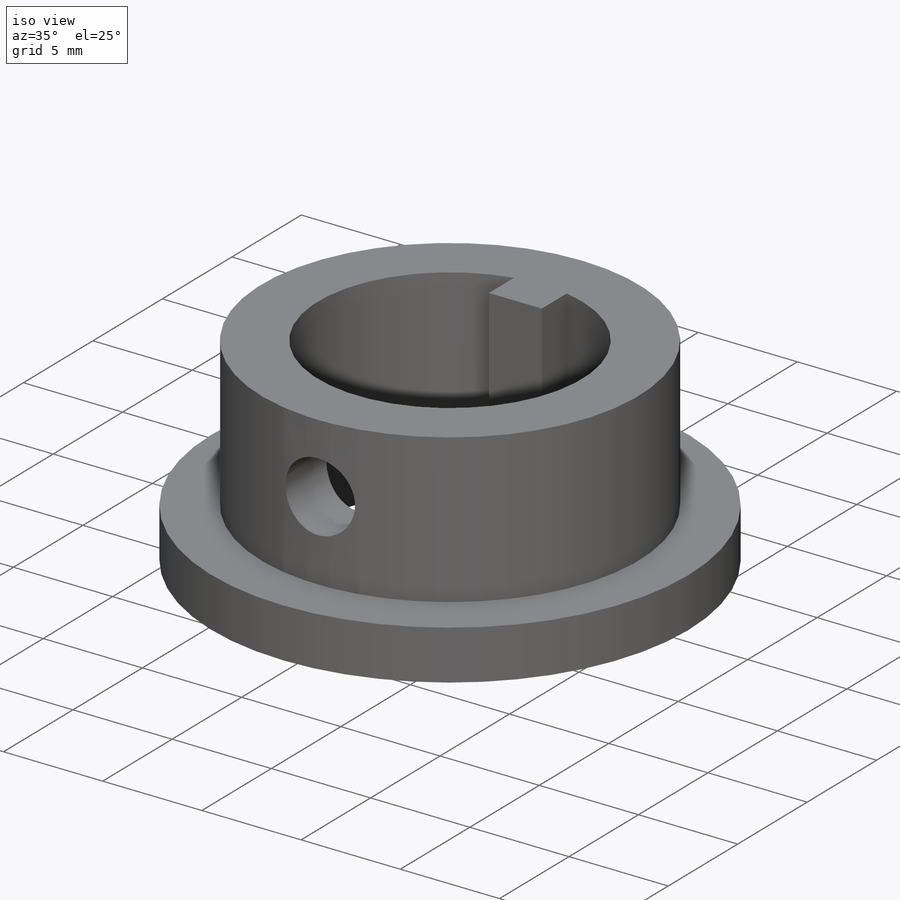
[diagram: iso view]
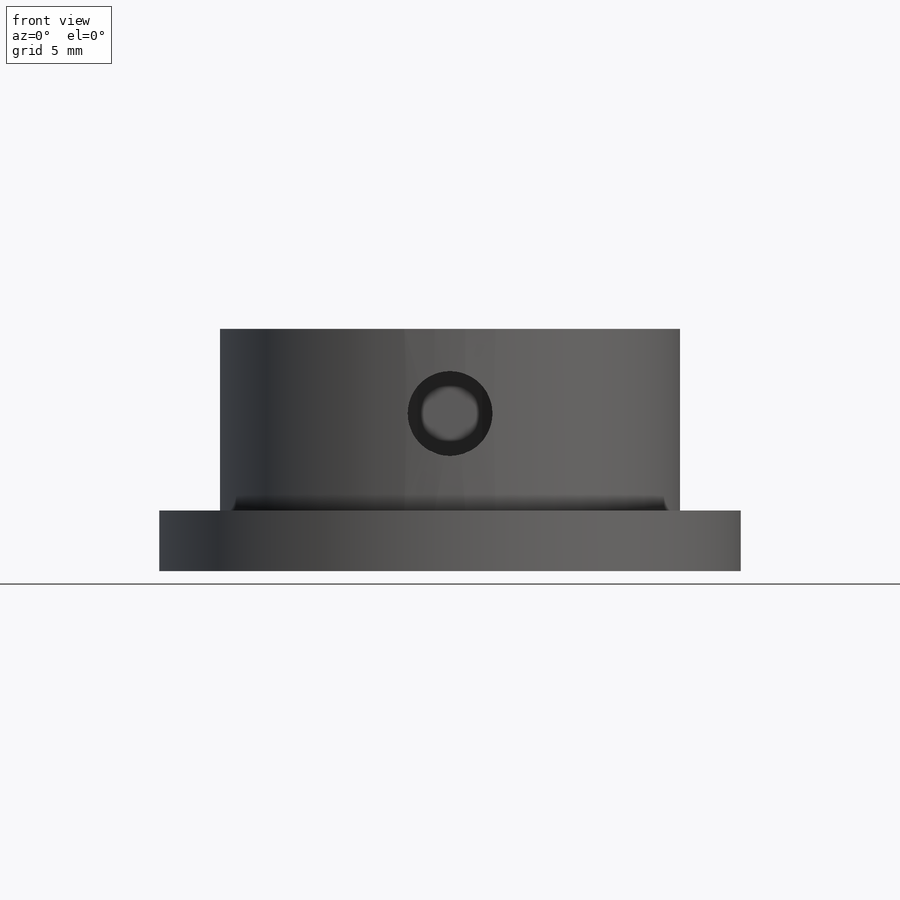
[diagram: front view]
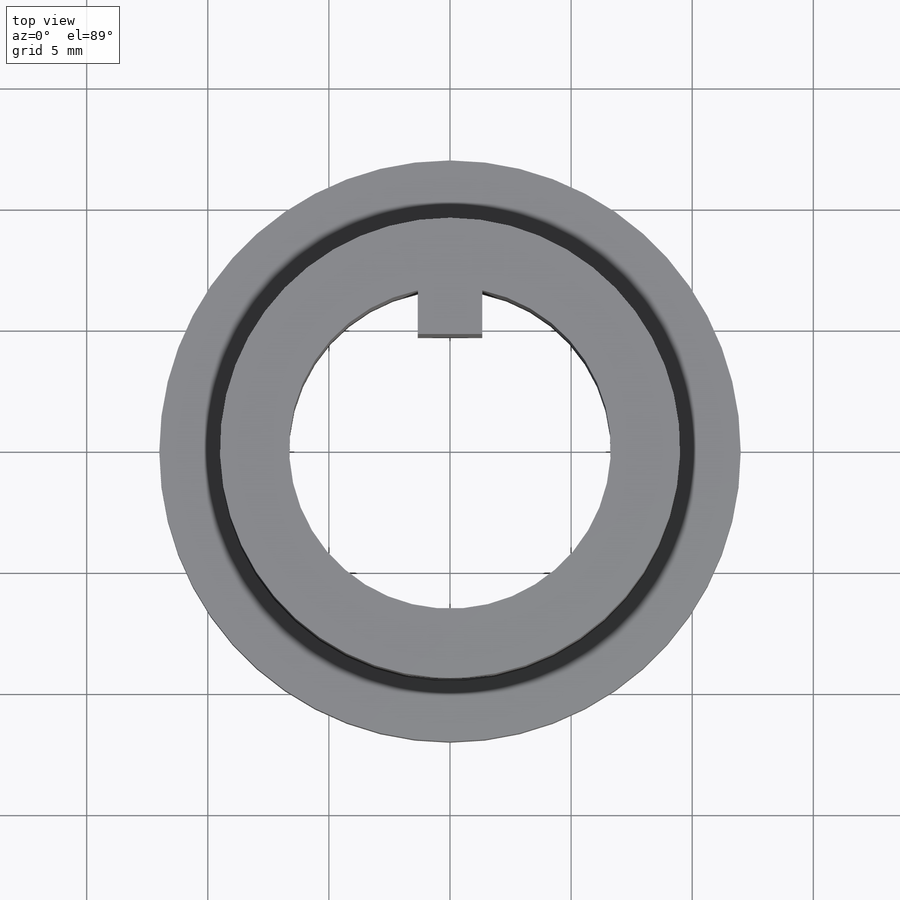
[diagram: top view]
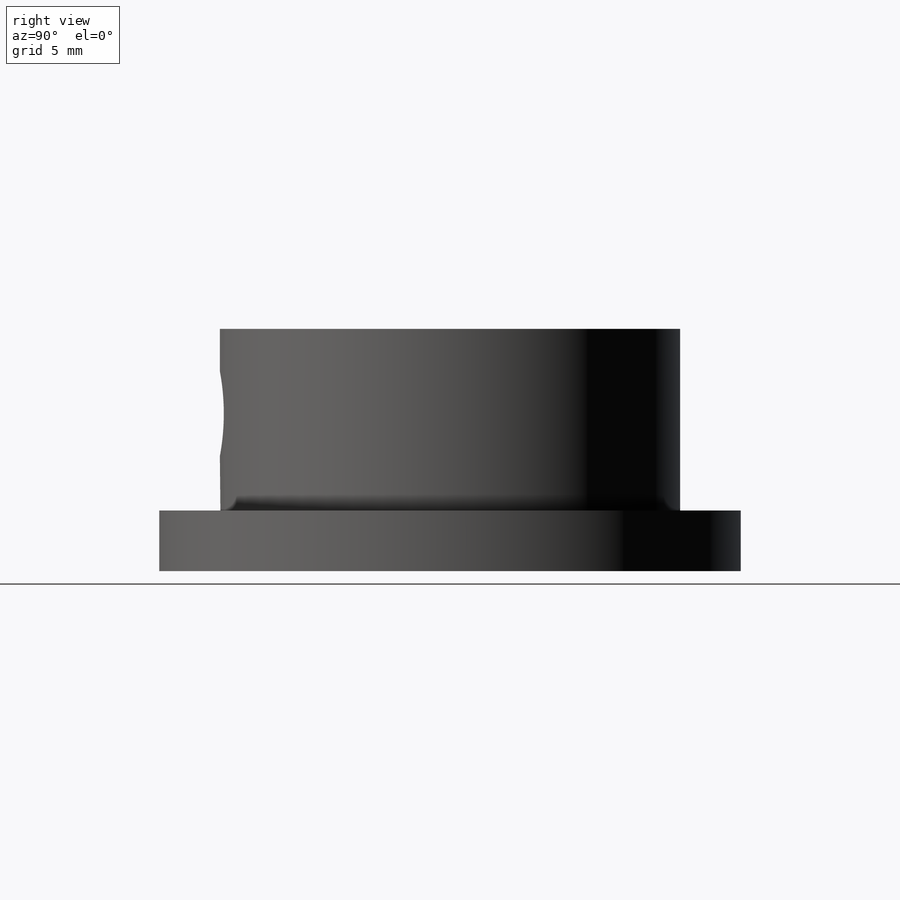
[diagram: right view]
SOLIDWORKS PART (.sldprt)
format: sldprt  version: not decoded by parser v0  size: 183,296 bytes
history: native  units: mm
features: sketch x4, extrude x2, cut_extrude x2, material x1, fillet x1 (+13 scaffold rows collapsed)
feature tree (23):
  scaffold x13  (default folders/planes/origin — collapsed)
  material  "Material <not specified>"
  sketch  "Sketch1"  dims[D1=13.278mm D2=19.0mm D3=1.8mm D4=2.662mm D5=1.33mm]
  extrude  "Boss-Extrude1"  Depth=10mm
  fillet  "Fillet3"  Radius=1mm
  sketch  "Sketch2"  dims[D1=2.5mm]
  extrude  "Boss-Extrude2"  Depth=2.5mm
  sketch  "Sketch4"
  cut_extrude  "Cut-Extrude2"  Depth=2.5mm
  sketch  "Sketch5"  dims[D1=3.5mm D2=6.5mm]
  cut_extrude  "Cut-Extrude3"  Depth=15mm
decode coverage: 8 of 9 modeling features carry decoded parameters
note: suppression state not decoded; provenance and decode notes live in map.json
